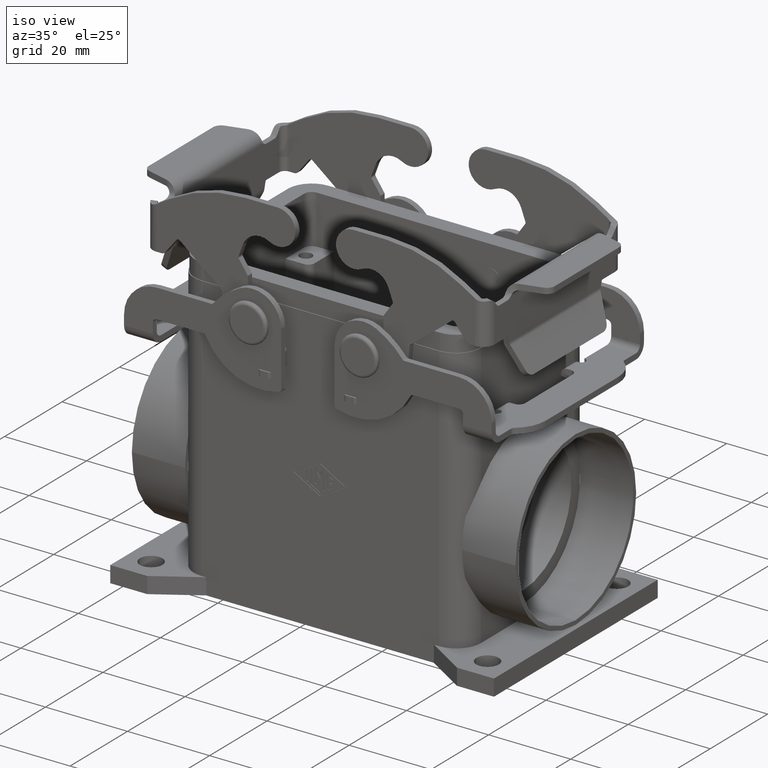
[diagram: clean part render]
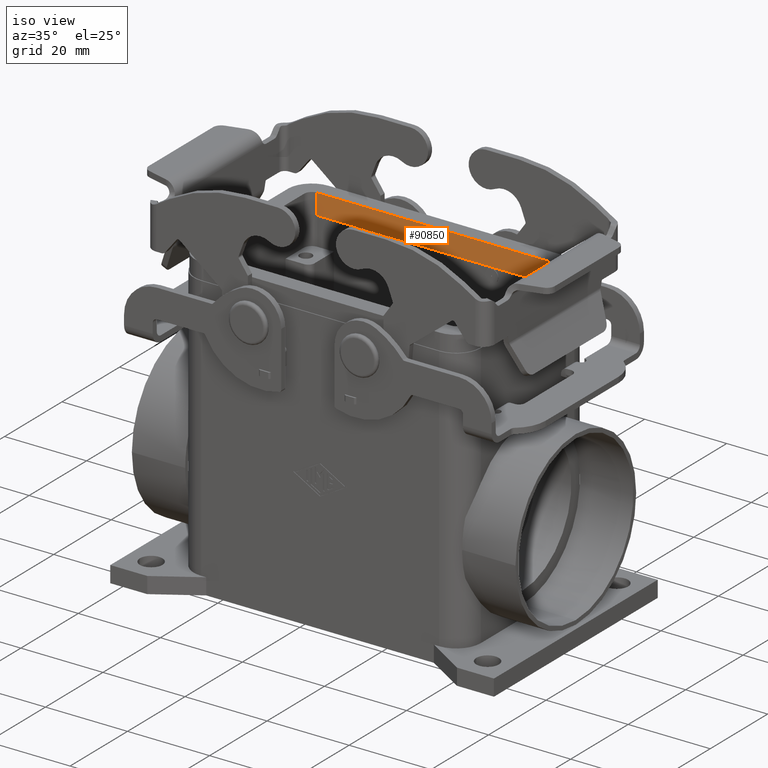
[diagram: same view with one face highlighted and labeled with its STEP entity id]
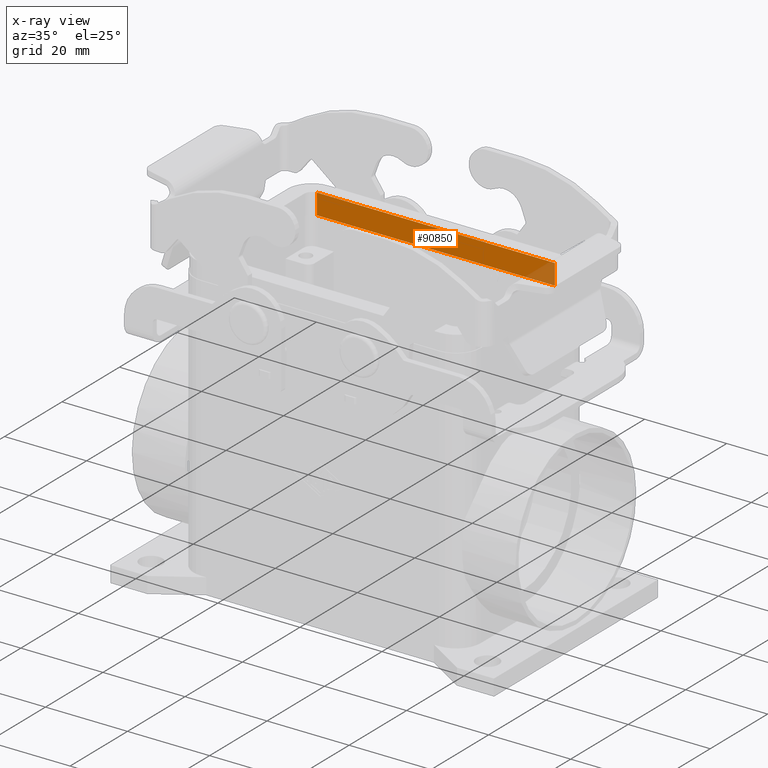
[diagram: x-ray of the same camera — body ghosted, the highlighted face saturated]
A machine part, iso view. The second image highlights one B-rep face of the part: STEP entity #90850.
The next image is the same camera in x-ray: the body ghosted, the highlighted face saturated — about 7% of this face is hidden behind the body in this view.
In plain terms, the highlighted planar face has unit normal (0, 1, 0).
Its self-contained STEP definition (entity closure, byte-faithful):
#87930=CARTESIAN_POINT('',(-42.5,18.05,2.));
#87940=VERTEX_POINT('',#87930);
#87990=CARTESIAN_POINT('',(15.5,18.05,2.));
#88000=DIRECTION('',(-1.,0.,0.));
#88010=VECTOR('',#88000,58.);
#88020=LINE('',#87990,#88010);
#88030=CARTESIAN_POINT('',(15.5,18.05,2.));
#88040=VERTEX_POINT('',#88030);
#88050=EDGE_CURVE('',#88040,#87940,#88020,.T.);
#90350=CARTESIAN_POINT('',(15.5,18.05,7.));
#90360=DIRECTION('',(0.,0.,-1.));
#90370=VECTOR('',#90360,5.);
#90380=LINE('',#90350,#90370);
#90390=CARTESIAN_POINT('',(15.5,18.05,7.));
#90400=VERTEX_POINT('',#90390);
#90410=EDGE_CURVE('',#90400,#88040,#90380,.T.);
#90620=CARTESIAN_POINT('',(15.5,18.05,7.));
#90630=DIRECTION('',(0.,1.,0.));
#90640=DIRECTION('',(0.,0.,1.));
#90650=AXIS2_PLACEMENT_3D('',#90620,#90630,#90640);
#90660=PLANE('',#90650);
#90670=CARTESIAN_POINT('',(-42.5,18.05,7.));
#90680=DIRECTION('',(0.,0.,-1.));
#90690=VECTOR('',#90680,5.);
#90700=LINE('',#90670,#90690);
#90710=CARTESIAN_POINT('',(-42.5,18.05,7.));
#90720=VERTEX_POINT('',#90710);
#90730=EDGE_CURVE('',#90720,#87940,#90700,.T.);
#90740=ORIENTED_EDGE('',*,*,#90730,.T.);
#90750=CARTESIAN_POINT('',(-42.5,18.05,7.));
#90760=DIRECTION('',(1.,0.,0.));
#90770=VECTOR('',#90760,58.);
#90780=LINE('',#90750,#90770);
#90790=EDGE_CURVE('',#90720,#90400,#90780,.T.);
#90800=ORIENTED_EDGE('',*,*,#90790,.F.);
#90810=ORIENTED_EDGE('',*,*,#90410,.F.);
#90820=ORIENTED_EDGE('',*,*,#88050,.F.);
#90830=EDGE_LOOP('',(#90820,#90810,#90800,#90740));
#90840=FACE_OUTER_BOUND('',#90830,.T.);
#90850=ADVANCED_FACE('',(#90840),#90660,.F.);